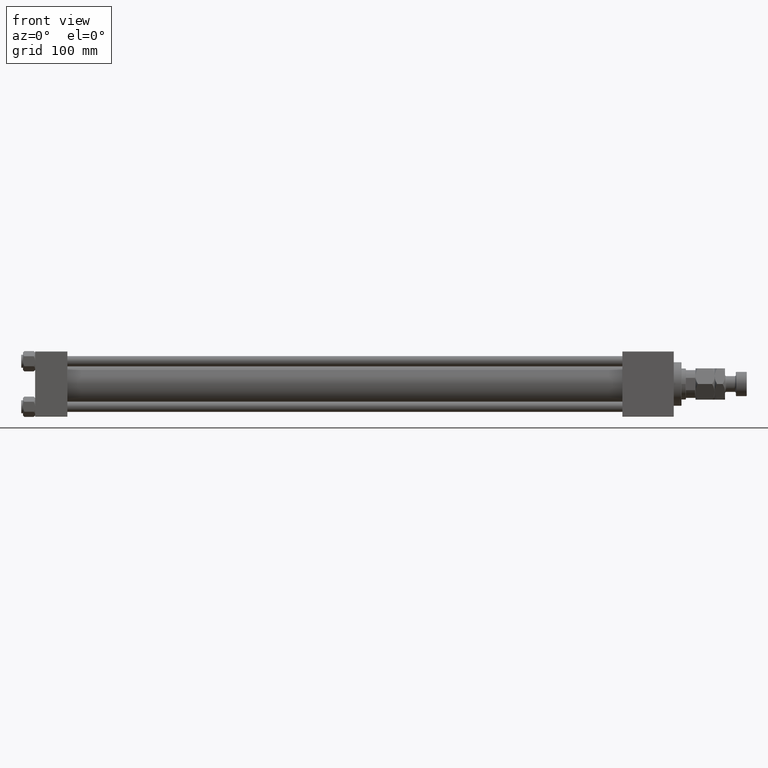
[diagram: clean part render]
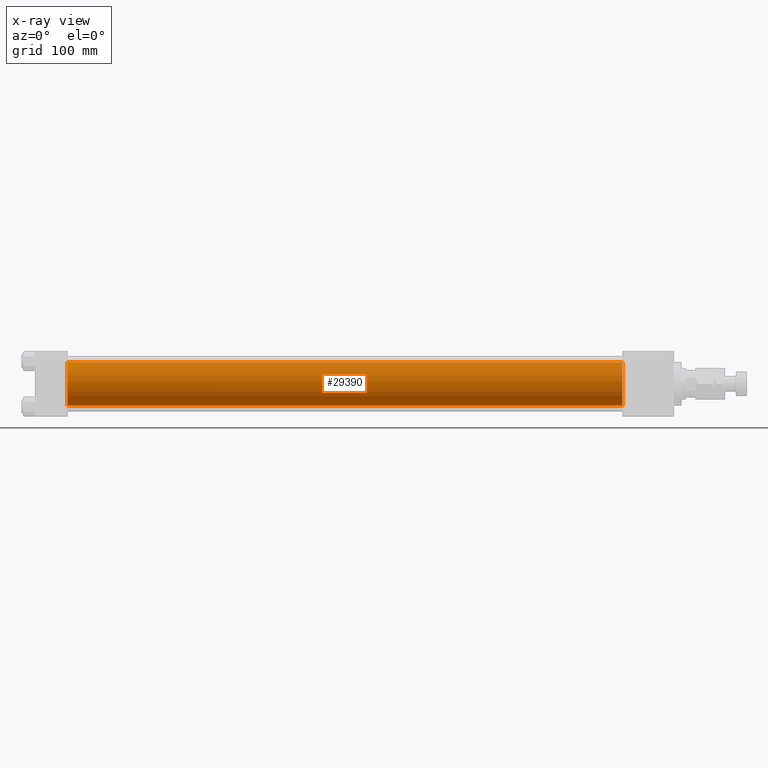
[diagram: x-ray — body ghosted, one internal face saturated and labeled with its STEP entity id]
A machine part, front view, then the same camera in x-ray: the body is ghosted and one INTERNAL B-rep face — a face not visible from any outside direction — is saturated and labeled: STEP entity #29390.
In plain terms, the highlighted cylindrical surface (edge-blend (fillet) strip) has radius 25 mm, axis along (-1, -0, -0).
Its self-contained STEP definition (entity closure, byte-faithful):
#1001 = DIRECTION ( 'NONE',  ( -1.000000000000000000, -0.000000000000000000, -0.000000000000000000 ) ) ;
#3661 = CARTESIAN_POINT ( 'NONE',  ( 675.0000000000000000, -2.602085213965210642E-15, 25.00000000000000000 ) ) ;
#4521 = CIRCLE ( 'NONE', #21309, 25.00000000000000000 ) ;
#4782 = VECTOR ( 'NONE', #19424, 1000.000000000000000 ) ;
#5862 = CYLINDRICAL_SURFACE ( 'NONE', #43750, 25.00000000000000000 ) ;
#6641 = CARTESIAN_POINT ( 'NONE',  ( 675.0000000000000000, -2.602085213965210642E-15, 0.000000000000000000 ) ) ;
#8319 = EDGE_LOOP ( 'NONE', ( #50109, #23636, #40865, #26778 ) ) ;
#9622 = VECTOR ( 'NONE', #1001, 1000.000000000000000 ) ;
#9888 = CARTESIAN_POINT ( 'NONE',  ( 675.0000000000000000, -2.602085213965210642E-15, 0.000000000000000000 ) ) ;
#10815 = VERTEX_POINT ( 'NONE', #45105 ) ;
#13741 = DIRECTION ( 'NONE',  ( 0.000000000000000000, 0.000000000000000000, 1.000000000000000000 ) ) ;
#15477 = LINE ( 'NONE', #3661, #4782 ) ;
#18631 = VERTEX_POINT ( 'NONE', #24473 ) ;
#19424 = DIRECTION ( 'NONE',  ( -1.000000000000000000, -0.000000000000000000, -0.000000000000000000 ) ) ;
#21309 = AXIS2_PLACEMENT_3D ( 'NONE', #34667, #38591, #22088 ) ;
#22088 = DIRECTION ( 'NONE',  ( 0.000000000000000000, 0.000000000000000000, -1.000000000000000000 ) ) ;
#22324 = AXIS2_PLACEMENT_3D ( 'NONE', #9888, #41872, #37937 ) ;
#23636 = ORIENTED_EDGE ( 'NONE', *, *, #37526, .T. ) ;
#24473 = CARTESIAN_POINT ( 'NONE',  ( 675.0000000000000000, -2.602085213965210642E-15, 25.00000000000000000 ) ) ;
#25211 = VERTEX_POINT ( 'NONE', #46625 ) ;
#26592 = FACE_OUTER_BOUND ( 'NONE', #8319, .T. ) ;
#26778 = ORIENTED_EDGE ( 'NONE', *, *, #45677, .F. ) ;
#29390 = ADVANCED_FACE ( 'NONE', ( #26592 ), #5862, .F. ) ;
#30843 = VERTEX_POINT ( 'NONE', #43020 ) ;
#33286 = CARTESIAN_POINT ( 'NONE',  ( 675.0000000000000000, 4.595317839031724996E-16, -25.00000000000000000 ) ) ;
#33693 = DIRECTION ( 'NONE',  ( -1.000000000000000000, -0.000000000000000000, -0.000000000000000000 ) ) ;
#34667 = CARTESIAN_POINT ( 'NONE',  ( 37.00000000000000000, -2.602085213965210642E-15, 0.000000000000000000 ) ) ;
#36954 = LINE ( 'NONE', #33286, #9622 ) ;
#37526 = EDGE_CURVE ( 'NONE', #25211, #10815, #36954, .T. ) ;
#37937 = DIRECTION ( 'NONE',  ( 0.000000000000000000, 0.000000000000000000, -1.000000000000000000 ) ) ;
#38573 = EDGE_CURVE ( 'NONE', #30843, #10815, #4521, .T. ) ;
#38591 = DIRECTION ( 'NONE',  ( 1.000000000000000000, 0.000000000000000000, 0.000000000000000000 ) ) ;
#40865 = ORIENTED_EDGE ( 'NONE', *, *, #38573, .F. ) ;
#41872 = DIRECTION ( 'NONE',  ( 1.000000000000000000, 0.000000000000000000, 0.000000000000000000 ) ) ;
#43020 = CARTESIAN_POINT ( 'NONE',  ( 37.00000000000000000, -2.602085213965210642E-15, 25.00000000000000000 ) ) ;
#43750 = AXIS2_PLACEMENT_3D ( 'NONE', #6641, #33693, #13741 ) ;
#43953 = EDGE_CURVE ( 'NONE', #18631, #25211, #48335, .T. ) ;
#45105 = CARTESIAN_POINT ( 'NONE',  ( 37.00000000000000000, 4.595317839031724996E-16, -25.00000000000000000 ) ) ;
#45677 = EDGE_CURVE ( 'NONE', #18631, #30843, #15477, .T. ) ;
#46625 = CARTESIAN_POINT ( 'NONE',  ( 675.0000000000000000, 4.595317839031724996E-16, -25.00000000000000000 ) ) ;
#48335 = CIRCLE ( 'NONE', #22324, 25.00000000000000000 ) ;
#50109 = ORIENTED_EDGE ( 'NONE', *, *, #43953, .T. ) ;